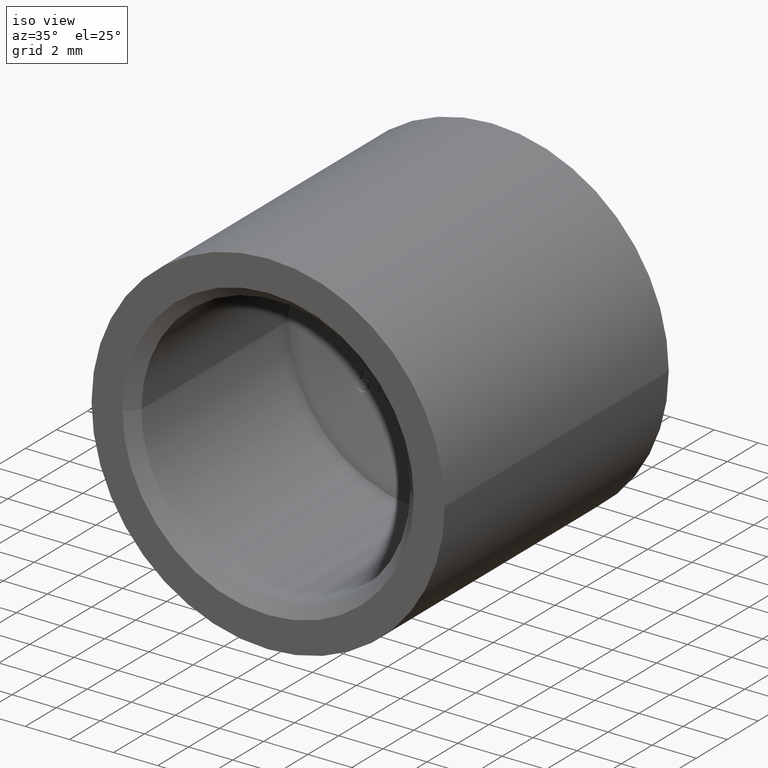
[diagram: clean part render]
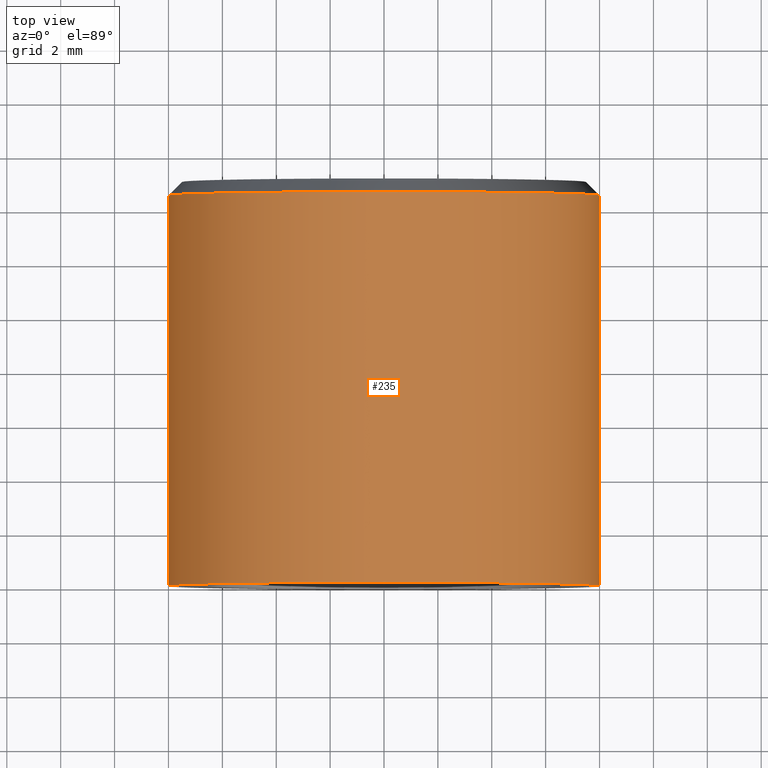
[diagram: tour spotlight — one face highlighted and labeled with its STEP entity id]
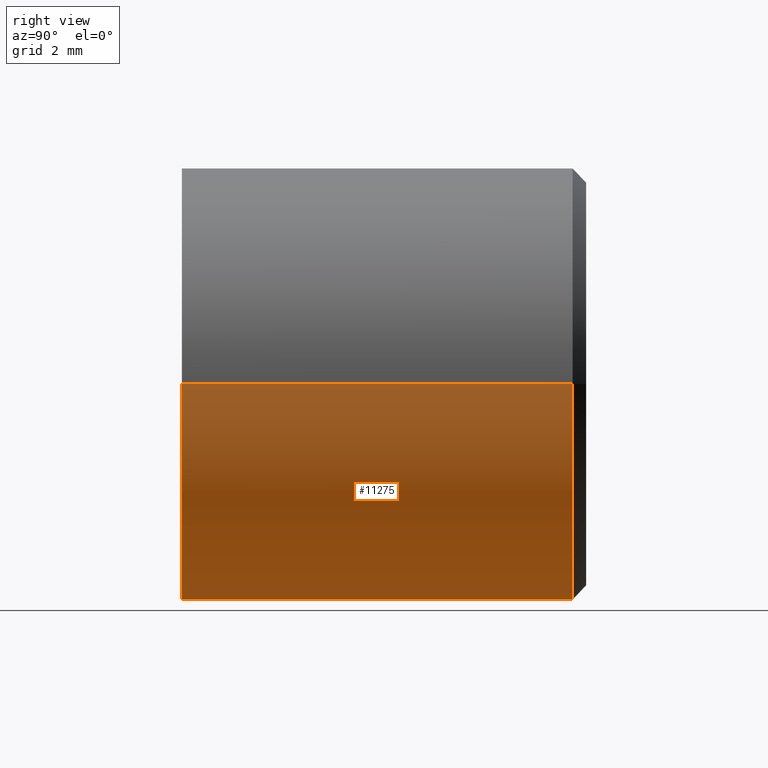
[diagram: tour spotlight — one face highlighted and labeled with its STEP entity id]
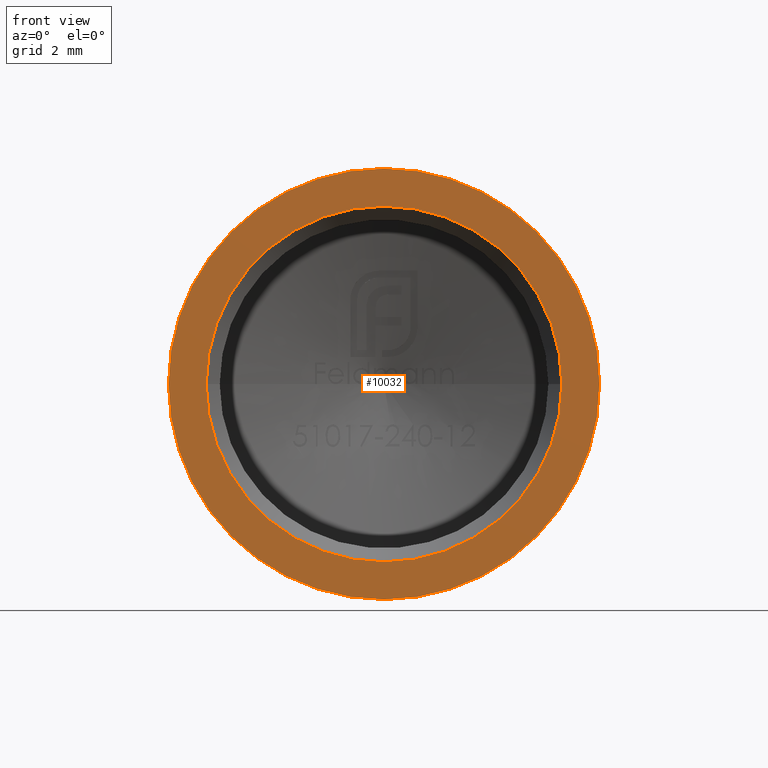
[diagram: tour spotlight — one face highlighted and labeled with its STEP entity id]
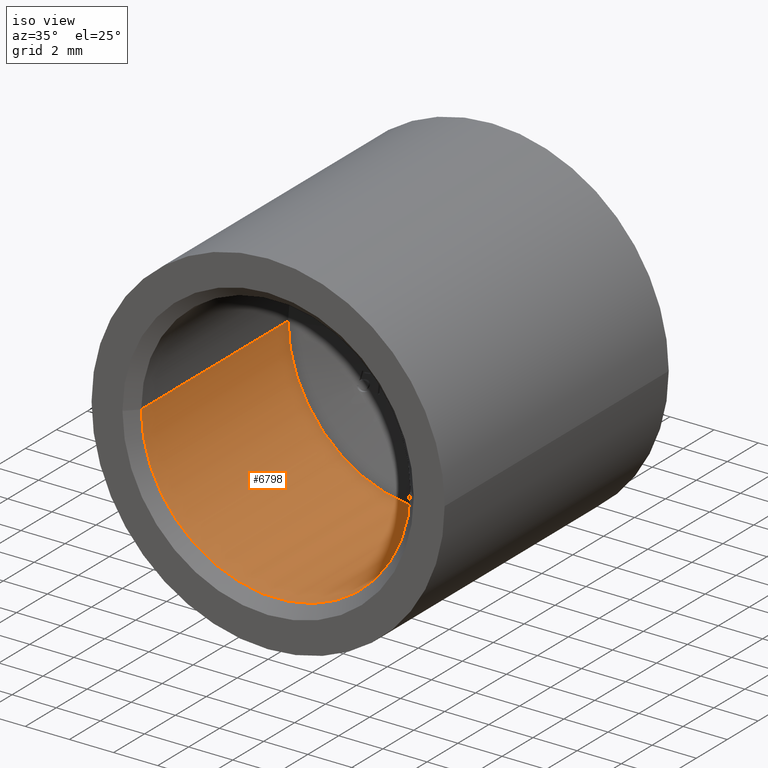
[diagram: tour spotlight — one face highlighted and labeled with its STEP entity id]
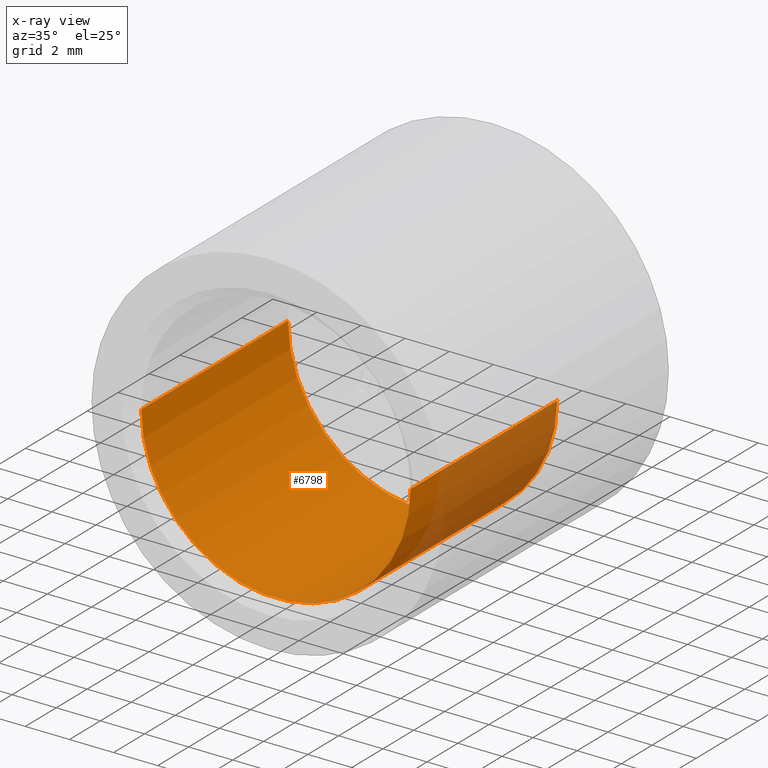
[diagram: x-ray of the same camera — body ghosted, this tour face saturated]
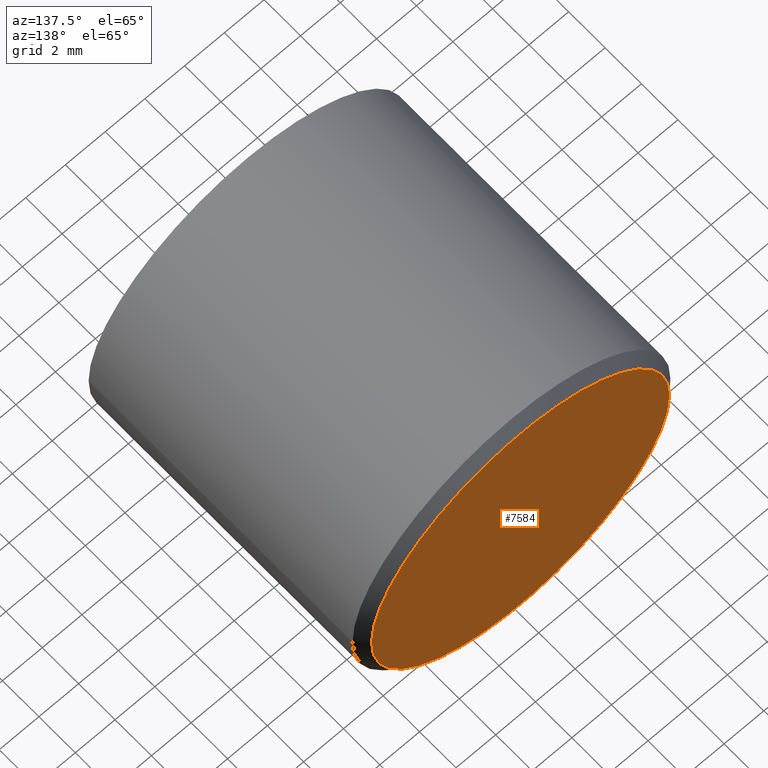
[diagram: tour spotlight — one face highlighted and labeled with its STEP entity id]
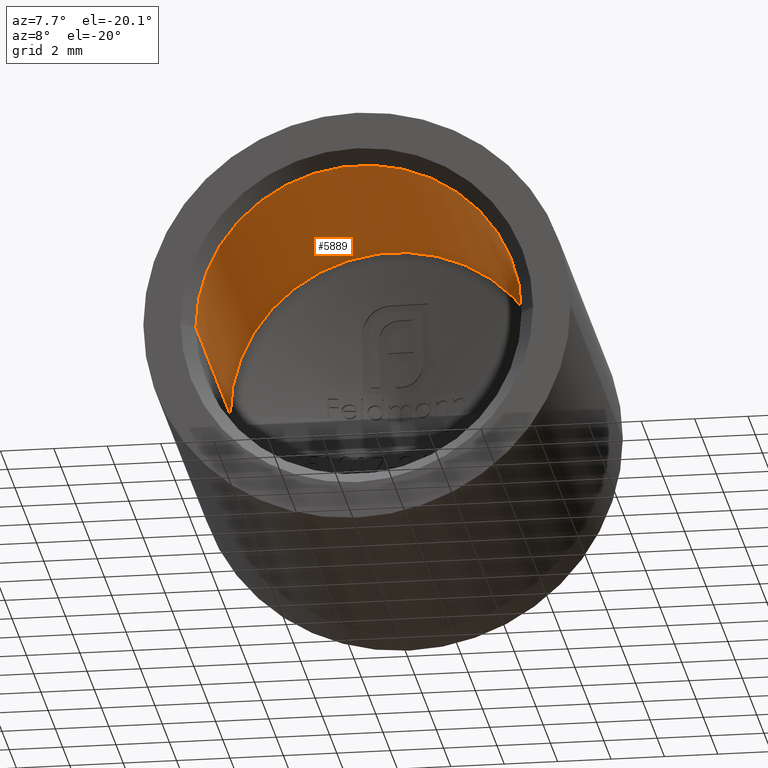
[diagram: tour spotlight — one face highlighted and labeled with its STEP entity id]
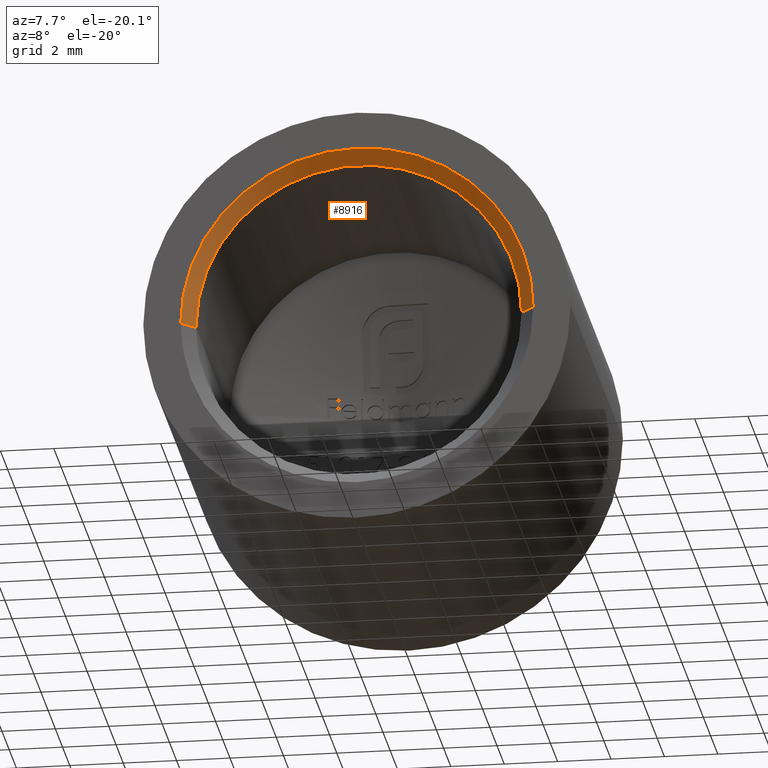
[diagram: tour spotlight — one face highlighted and labeled with its STEP entity id]
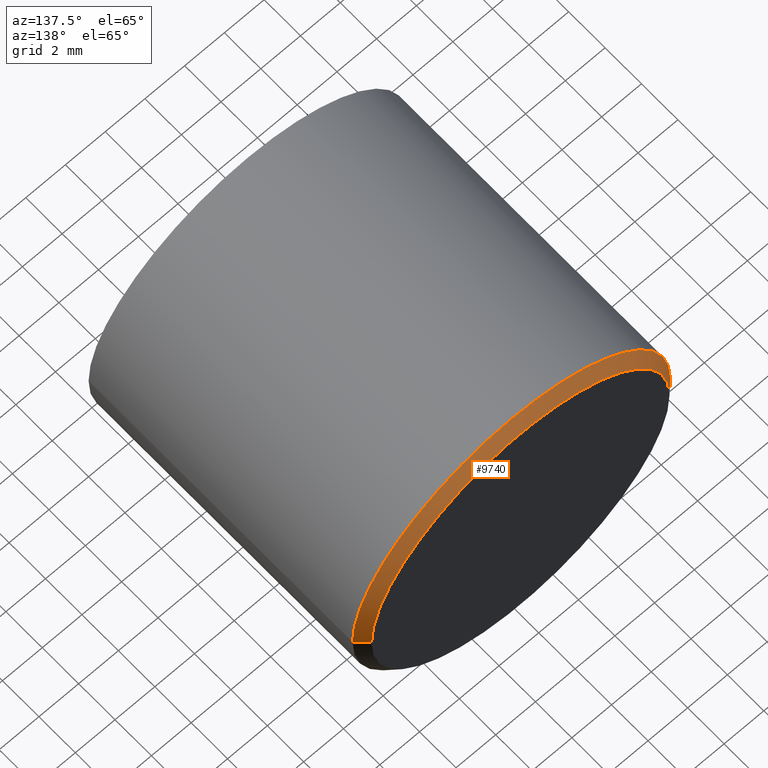
[diagram: tour spotlight — one face highlighted and labeled with its STEP entity id]
A machine part: a face-by-face anatomy tour. The part has 289 B-rep faces; the first image is the clean iso view, then the 8 largest visible faces are spotlighted one at a time (largest first), each with its STEP entity span.

Face 1 — top view, entity #235. In plain terms, the highlighted cylindrical surface (partial cylindrical patch) has radius 8 mm, axis along (-0, 1, -0).
Definition (entity closure, byte-faithful):
#9 = EDGE_CURVE ( 'NONE', #12819, #5867, #4205, .T. ) ;
#12 = CARTESIAN_POINT ( 'NONE',  ( 8.000000000000000000, 14.49999999999999467, 9.797174393178825657E-16 ) ) ;
#235 = ADVANCED_FACE ( 'NONE', ( #11377 ), #10595, .T. ) ;
#869 = CARTESIAN_POINT ( 'NONE',  ( 8.000000000000000000, 14.99999999999999822, 9.797174393178825657E-16 ) ) ;
#962 = VERTEX_POINT ( 'NONE', #4371 ) ;
#1345 = EDGE_CURVE ( 'NONE', #962, #7133, #8089, .T. ) ;
#2359 = ORIENTED_EDGE ( 'NONE', *, *, #9, .T. ) ;
#2630 = DIRECTION ( 'NONE',  ( -6.618464551199105246E-18, 1.000000000000000000, -0.000000000000000000 ) ) ;
#3246 = DIRECTION ( 'NONE',  ( 1.000000000000000000, 0.000000000000000000, 0.000000000000000000 ) ) ;
#3904 = DIRECTION ( 'NONE',  ( -6.618464551199105246E-18, 1.000000000000000000, -0.000000000000000000 ) ) ;
#3992 = AXIS2_PLACEMENT_3D ( 'NONE', #8762, #2630, #6684 ) ;
#4205 = LINE ( 'NONE', #869, #13158 ) ;
#4371 = CARTESIAN_POINT ( 'NONE',  ( -8.000000000000000000, -5.294771640959284813E-17, 0.000000000000000000 ) ) ;
#4662 = AXIS2_PLACEMENT_3D ( 'NONE', #8352, #10383, #3246 ) ;
#4717 = EDGE_CURVE ( 'NONE', #5867, #7133, #9868, .T. ) ;
#5100 = ORIENTED_EDGE ( 'NONE', *, *, #1345, .F. ) ;
#5333 = EDGE_LOOP ( 'NONE', ( #6209, #2359, #8066, #5100 ) ) ;
#5867 = VERTEX_POINT ( 'NONE', #12 ) ;
#6209 = ORIENTED_EDGE ( 'NONE', *, *, #10304, .T. ) ;
#6594 = DIRECTION ( 'NONE',  ( -1.000000000000000000, -6.618464551199106016E-18, 0.000000000000000000 ) ) ;
#6684 = DIRECTION ( 'NONE',  ( -1.000000000000000000, 0.000000000000000000, 0.000000000000000000 ) ) ;
#6688 = CARTESIAN_POINT ( 'NONE',  ( 9.927696826798656020E-17, 0.000000000000000000, 0.000000000000000000 ) ) ;
#7133 = VERTEX_POINT ( 'NONE', #8022 ) ;
#7606 = AXIS2_PLACEMENT_3D ( 'NONE', #6688, #12863, #6594 ) ;
#8022 = CARTESIAN_POINT ( 'NONE',  ( -8.000000000000000000, 14.49999999999999467, 0.000000000000000000 ) ) ;
#8066 = ORIENTED_EDGE ( 'NONE', *, *, #4717, .T. ) ;
#8089 = LINE ( 'NONE', #11222, #11477 ) ;
#8352 = CARTESIAN_POINT ( 'NONE',  ( 3.309232275599567260E-18, 14.49999999999999467, 0.000000000000000000 ) ) ;
#8762 = CARTESIAN_POINT ( 'NONE',  ( 0.000000000000000000, 14.99999999999999822, 0.000000000000000000 ) ) ;
#9151 = DIRECTION ( 'NONE',  ( -6.618464551199105246E-18, 1.000000000000000000, -0.000000000000000000 ) ) ;
#9868 = CIRCLE ( 'NONE', #4662, 8.000000000000000000 ) ;
#10304 = EDGE_CURVE ( 'NONE', #962, #12819, #12483, .T. ) ;
#10383 = DIRECTION ( 'NONE',  ( 6.618464551199105246E-18, -1.000000000000000000, 0.000000000000000000 ) ) ;
#10595 = CYLINDRICAL_SURFACE ( 'NONE', #3992, 8.000000000000000000 ) ;
#10606 = CARTESIAN_POINT ( 'NONE',  ( 8.000000000000000000, 5.294771640959284813E-17, 9.797174393178825657E-16 ) ) ;
#11222 = CARTESIAN_POINT ( 'NONE',  ( -8.000000000000000000, 14.99999999999999822, 0.000000000000000000 ) ) ;
#11377 = FACE_OUTER_BOUND ( 'NONE', #5333, .T. ) ;
#11477 = VECTOR ( 'NONE', #9151, 1000.000000000000000 ) ;
#12483 = CIRCLE ( 'NONE', #7606, 8.000000000000000000 ) ;
#12819 = VERTEX_POINT ( 'NONE', #10606 ) ;
#12863 = DIRECTION ( 'NONE',  ( -6.618464551199105246E-18, 1.000000000000000000, -0.000000000000000000 ) ) ;
#13158 = VECTOR ( 'NONE', #3904, 1000.000000000000000 ) ;

Face 2 — right view, entity #11275. In plain terms, the highlighted cylindrical surface (partial cylindrical patch) has radius 8 mm, axis along (-0, 1, -0).
Definition (entity closure, byte-faithful):
#9 = EDGE_CURVE ( 'NONE', #12819, #5867, #4205, .T. ) ;
#12 = CARTESIAN_POINT ( 'NONE',  ( 8.000000000000000000, 14.49999999999999467, 9.797174393178825657E-16 ) ) ;
#54 = CARTESIAN_POINT ( 'NONE',  ( 9.927696826798656020E-17, 0.000000000000000000, 0.000000000000000000 ) ) ;
#515 = DIRECTION ( 'NONE',  ( -1.000000000000000000, 0.000000000000000000, 0.000000000000000000 ) ) ;
#869 = CARTESIAN_POINT ( 'NONE',  ( 8.000000000000000000, 14.99999999999999822, 9.797174393178825657E-16 ) ) ;
#962 = VERTEX_POINT ( 'NONE', #4371 ) ;
#1345 = EDGE_CURVE ( 'NONE', #962, #7133, #8089, .T. ) ;
#1393 = EDGE_CURVE ( 'NONE', #7133, #5867, #10437, .T. ) ;
#1661 = ORIENTED_EDGE ( 'NONE', *, *, #1345, .T. ) ;
#2082 = EDGE_LOOP ( 'NONE', ( #2357, #13066, #1661, #13167 ) ) ;
#2357 = ORIENTED_EDGE ( 'NONE', *, *, #9, .F. ) ;
#2628 = AXIS2_PLACEMENT_3D ( 'NONE', #10427, #11409, #7345 ) ;
#3876 = EDGE_CURVE ( 'NONE', #12819, #962, #8584, .T. ) ;
#3904 = DIRECTION ( 'NONE',  ( -6.618464551199105246E-18, 1.000000000000000000, -0.000000000000000000 ) ) ;
#4205 = LINE ( 'NONE', #869, #13158 ) ;
#4371 = CARTESIAN_POINT ( 'NONE',  ( -8.000000000000000000, -5.294771640959284813E-17, 0.000000000000000000 ) ) ;
#5097 = CYLINDRICAL_SURFACE ( 'NONE', #13023, 8.000000000000000000 ) ;
#5867 = VERTEX_POINT ( 'NONE', #12 ) ;
#7133 = VERTEX_POINT ( 'NONE', #8022 ) ;
#7345 = DIRECTION ( 'NONE',  ( 1.000000000000000000, 0.000000000000000000, 0.000000000000000000 ) ) ;
#7825 = FACE_OUTER_BOUND ( 'NONE', #2082, .T. ) ;
#8022 = CARTESIAN_POINT ( 'NONE',  ( -8.000000000000000000, 14.49999999999999467, 0.000000000000000000 ) ) ;
#8089 = LINE ( 'NONE', #11222, #11477 ) ;
#8161 = DIRECTION ( 'NONE',  ( -1.000000000000000000, -6.618464551199106016E-18, 0.000000000000000000 ) ) ;
#8203 = DIRECTION ( 'NONE',  ( -6.618464551199105246E-18, 1.000000000000000000, -0.000000000000000000 ) ) ;
#8584 = CIRCLE ( 'NONE', #11500, 8.000000000000000000 ) ;
#9151 = DIRECTION ( 'NONE',  ( -6.618464551199105246E-18, 1.000000000000000000, -0.000000000000000000 ) ) ;
#10427 = CARTESIAN_POINT ( 'NONE',  ( 3.309232275599567260E-18, 14.49999999999999467, 0.000000000000000000 ) ) ;
#10437 = CIRCLE ( 'NONE', #2628, 8.000000000000000000 ) ;
#10510 = CARTESIAN_POINT ( 'NONE',  ( 0.000000000000000000, 14.99999999999999822, 0.000000000000000000 ) ) ;
#10606 = CARTESIAN_POINT ( 'NONE',  ( 8.000000000000000000, 5.294771640959284813E-17, 9.797174393178825657E-16 ) ) ;
#11222 = CARTESIAN_POINT ( 'NONE',  ( -8.000000000000000000, 14.99999999999999822, 0.000000000000000000 ) ) ;
#11275 = ADVANCED_FACE ( 'NONE', ( #7825 ), #5097, .T. ) ;
#11409 = DIRECTION ( 'NONE',  ( 6.618464551199105246E-18, -1.000000000000000000, 0.000000000000000000 ) ) ;
#11477 = VECTOR ( 'NONE', #9151, 1000.000000000000000 ) ;
#11500 = AXIS2_PLACEMENT_3D ( 'NONE', #54, #8203, #8161 ) ;
#12580 = DIRECTION ( 'NONE',  ( -6.618464551199105246E-18, 1.000000000000000000, -0.000000000000000000 ) ) ;
#12819 = VERTEX_POINT ( 'NONE', #10606 ) ;
#13023 = AXIS2_PLACEMENT_3D ( 'NONE', #10510, #12580, #515 ) ;
#13066 = ORIENTED_EDGE ( 'NONE', *, *, #3876, .T. ) ;
#13158 = VECTOR ( 'NONE', #3904, 1000.000000000000000 ) ;
#13167 = ORIENTED_EDGE ( 'NONE', *, *, #1393, .T. ) ;

Face 3 — front view, entity #10032. In plain terms, the highlighted planar face has unit normal (-0, 1, 0).
Definition (entity closure, byte-faithful):
#54 = CARTESIAN_POINT ( 'NONE',  ( 9.927696826798656020E-17, 0.000000000000000000, 0.000000000000000000 ) ) ;
#183 = ORIENTED_EDGE ( 'NONE', *, *, #3876, .F. ) ;
#510 = EDGE_LOOP ( 'NONE', ( #8728, #8024 ) ) ;
#592 = EDGE_CURVE ( 'NONE', #10775, #5686, #10922, .T. ) ;
#821 = FACE_BOUND ( 'NONE', #510, .T. ) ;
#962 = VERTEX_POINT ( 'NONE', #4371 ) ;
#963 = AXIS2_PLACEMENT_3D ( 'NONE', #12303, #8339, #12392 ) ;
#2325 = DIRECTION ( 'NONE',  ( -6.618464551199105246E-18, 1.000000000000000000, -0.000000000000000000 ) ) ;
#2375 = DIRECTION ( 'NONE',  ( -1.000000000000000000, -6.618464551199106016E-18, 0.000000000000000000 ) ) ;
#2633 = EDGE_LOOP ( 'NONE', ( #8710, #183 ) ) ;
#3176 = CARTESIAN_POINT ( 'NONE',  ( -6.600000000000002309, -9.034204112386780417E-17, 8.082668874372533978E-16 ) ) ;
#3839 = EDGE_CURVE ( 'NONE', #5686, #10775, #9707, .T. ) ;
#3876 = EDGE_CURVE ( 'NONE', #12819, #962, #8584, .T. ) ;
#4371 = CARTESIAN_POINT ( 'NONE',  ( -8.000000000000000000, -5.294771640959284813E-17, 0.000000000000000000 ) ) ;
#4424 = CARTESIAN_POINT ( 'NONE',  ( 6.600000000000002309, -2.978309048039577254E-18, 0.000000000000000000 ) ) ;
#5686 = VERTEX_POINT ( 'NONE', #4424 ) ;
#5901 = CARTESIAN_POINT ( 'NONE',  ( 6.099999999999999645, -6.287541323639151832E-18, 0.000000000000000000 ) ) ;
#6594 = DIRECTION ( 'NONE',  ( -1.000000000000000000, -6.618464551199106016E-18, 0.000000000000000000 ) ) ;
#6688 = CARTESIAN_POINT ( 'NONE',  ( 9.927696826798656020E-17, 0.000000000000000000, 0.000000000000000000 ) ) ;
#6761 = AXIS2_PLACEMENT_3D ( 'NONE', #5901, #7936, #10815 ) ;
#7606 = AXIS2_PLACEMENT_3D ( 'NONE', #6688, #12863, #6594 ) ;
#7936 = DIRECTION ( 'NONE',  ( -6.618464551199105246E-18, 1.000000000000000000, 0.000000000000000000 ) ) ;
#8024 = ORIENTED_EDGE ( 'NONE', *, *, #592, .T. ) ;
#8161 = DIRECTION ( 'NONE',  ( -1.000000000000000000, -6.618464551199106016E-18, 0.000000000000000000 ) ) ;
#8203 = DIRECTION ( 'NONE',  ( -6.618464551199105246E-18, 1.000000000000000000, -0.000000000000000000 ) ) ;
#8339 = DIRECTION ( 'NONE',  ( -6.618464551199105246E-18, 1.000000000000000000, -0.000000000000000000 ) ) ;
#8419 = CARTESIAN_POINT ( 'NONE',  ( 9.927696826798656020E-17, -4.666017508595368859E-17, 0.000000000000000000 ) ) ;
#8584 = CIRCLE ( 'NONE', #11500, 8.000000000000000000 ) ;
#8710 = ORIENTED_EDGE ( 'NONE', *, *, #10304, .F. ) ;
#8728 = ORIENTED_EDGE ( 'NONE', *, *, #3839, .T. ) ;
#9236 = FACE_OUTER_BOUND ( 'NONE', #2633, .T. ) ;
#9707 = CIRCLE ( 'NONE', #963, 6.600000000000002309 ) ;
#10032 = ADVANCED_FACE ( 'NONE', ( #821, #9236 ), #10995, .F. ) ;
#10304 = EDGE_CURVE ( 'NONE', #962, #12819, #12483, .T. ) ;
#10606 = CARTESIAN_POINT ( 'NONE',  ( 8.000000000000000000, 5.294771640959284813E-17, 9.797174393178825657E-16 ) ) ;
#10775 = VERTEX_POINT ( 'NONE', #3176 ) ;
#10815 = DIRECTION ( 'NONE',  ( -1.000000000000000000, -6.618464551199105246E-18, 0.000000000000000000 ) ) ;
#10922 = CIRCLE ( 'NONE', #11334, 6.600000000000002309 ) ;
#10995 = PLANE ( 'NONE',  #6761 ) ;
#11334 = AXIS2_PLACEMENT_3D ( 'NONE', #8419, #2325, #2375 ) ;
#11500 = AXIS2_PLACEMENT_3D ( 'NONE', #54, #8203, #8161 ) ;
#12303 = CARTESIAN_POINT ( 'NONE',  ( 9.927696826798656020E-17, -4.666017508595368859E-17, 0.000000000000000000 ) ) ;
#12392 = DIRECTION ( 'NONE',  ( -1.000000000000000000, -6.618464551199106016E-18, 0.000000000000000000 ) ) ;
#12483 = CIRCLE ( 'NONE', #7606, 8.000000000000000000 ) ;
#12819 = VERTEX_POINT ( 'NONE', #10606 ) ;
#12863 = DIRECTION ( 'NONE',  ( -6.618464551199105246E-18, 1.000000000000000000, -0.000000000000000000 ) ) ;

Face 4 — iso view, entity #6798. An x-ray twin of the same camera follows (body ghosted, this face saturated) — the face is partly hidden behind the body. In plain terms, the highlighted cylindrical surface (partial cylindrical patch) has radius 6.1 mm, axis along (-0, 1, -0).
Definition (entity closure, byte-faithful):
#582 = CARTESIAN_POINT ( 'NONE',  ( 0.000000000000000000, 14.99999999999999822, 0.000000000000000000 ) ) ;
#1104 = ORIENTED_EDGE ( 'NONE', *, *, #12552, .T. ) ;
#3277 = AXIS2_PLACEMENT_3D ( 'NONE', #9651, #6719, #11862 ) ;
#3460 = EDGE_LOOP ( 'NONE', ( #12862, #8117, #1104, #7053 ) ) ;
#3717 = DIRECTION ( 'NONE',  ( -1.000000000000000000, 0.000000000000000000, 0.000000000000000000 ) ) ;
#3887 = AXIS2_PLACEMENT_3D ( 'NONE', #582, #8772, #3717 ) ;
#4057 = EDGE_CURVE ( 'NONE', #7925, #7695, #9204, .T. ) ;
#5043 = AXIS2_PLACEMENT_3D ( 'NONE', #12177, #6046, #12212 ) ;
#5259 = DIRECTION ( 'NONE',  ( -6.618464551199105246E-18, 1.000000000000000000, -0.000000000000000000 ) ) ;
#5300 = CARTESIAN_POINT ( 'NONE',  ( 6.099999999999998757, 0.5000000000000022204, 7.470345474798853307E-16 ) ) ;
#5534 = EDGE_CURVE ( 'NONE', #7925, #12870, #8397, .T. ) ;
#6046 = DIRECTION ( 'NONE',  ( -6.618464551199105246E-18, 1.000000000000000000, -0.000000000000000000 ) ) ;
#6719 = DIRECTION ( 'NONE',  ( 6.618464551199104475E-18, -1.000000000000000000, -0.000000000000000000 ) ) ;
#6798 = ADVANCED_FACE ( 'NONE', ( #11113 ), #11601, .F. ) ;
#7053 = ORIENTED_EDGE ( 'NONE', *, *, #5534, .F. ) ;
#7665 = CARTESIAN_POINT ( 'NONE',  ( 6.099999999999998757, 14.99999999999999822, 7.470345474798853307E-16 ) ) ;
#7695 = VERTEX_POINT ( 'NONE', #5300 ) ;
#7745 = VECTOR ( 'NONE', #10797, 1000.000000000000000 ) ;
#7820 = EDGE_CURVE ( 'NONE', #7695, #12060, #8191, .T. ) ;
#7925 = VERTEX_POINT ( 'NONE', #11878 ) ;
#8117 = ORIENTED_EDGE ( 'NONE', *, *, #7820, .T. ) ;
#8191 = LINE ( 'NONE', #7665, #7745 ) ;
#8397 = LINE ( 'NONE', #12279, #9695 ) ;
#8772 = DIRECTION ( 'NONE',  ( -6.618464551199105246E-18, 1.000000000000000000, -0.000000000000000000 ) ) ;
#9092 = CARTESIAN_POINT ( 'NONE',  ( -6.100000000000000533, 10.00000000000000000, 7.470345474798855279E-16 ) ) ;
#9204 = CIRCLE ( 'NONE', #3277, 6.099999999999998757 ) ;
#9651 = CARTESIAN_POINT ( 'NONE',  ( 9.596773599238699217E-17, 0.5000000000000022204, 0.000000000000000000 ) ) ;
#9695 = VECTOR ( 'NONE', #5259, 1000.000000000000000 ) ;
#9824 = CARTESIAN_POINT ( 'NONE',  ( 6.100000000000000533, 10.00000000000000000, 0.000000000000000000 ) ) ;
#10797 = DIRECTION ( 'NONE',  ( -6.618464551199105246E-18, 1.000000000000000000, -0.000000000000000000 ) ) ;
#11113 = FACE_OUTER_BOUND ( 'NONE', #3460, .T. ) ;
#11601 = CYLINDRICAL_SURFACE ( 'NONE', #3887, 6.099999999999998757 ) ;
#11862 = DIRECTION ( 'NONE',  ( -1.000000000000000000, 0.000000000000000000, 0.000000000000000000 ) ) ;
#11878 = CARTESIAN_POINT ( 'NONE',  ( -6.099999999999998757, 0.5000000000000022204, 0.000000000000000000 ) ) ;
#12060 = VERTEX_POINT ( 'NONE', #9824 ) ;
#12177 = CARTESIAN_POINT ( 'NONE',  ( 3.309232275599550774E-17, 10.00000000000000000, 0.000000000000000000 ) ) ;
#12212 = DIRECTION ( 'NONE',  ( -1.000000000000000000, 0.000000000000000000, 0.000000000000000000 ) ) ;
#12279 = CARTESIAN_POINT ( 'NONE',  ( -6.099999999999998757, 14.99999999999999822, 0.000000000000000000 ) ) ;
#12552 = EDGE_CURVE ( 'NONE', #12060, #12870, #13237, .T. ) ;
#12862 = ORIENTED_EDGE ( 'NONE', *, *, #4057, .T. ) ;
#12870 = VERTEX_POINT ( 'NONE', #9092 ) ;
#13237 = CIRCLE ( 'NONE', #5043, 6.099999999999997868 ) ;

Face 5 — auxiliary view, entity #7584. In plain terms, the highlighted planar face has unit normal (0, -1, 0).
Definition (entity closure, byte-faithful):
#202 = DIRECTION ( 'NONE',  ( 1.000000000000000000, 0.000000000000000000, 0.000000000000000000 ) ) ;
#825 = AXIS2_PLACEMENT_3D ( 'NONE', #9082, #6185, #10282 ) ;
#1284 = ORIENTED_EDGE ( 'NONE', *, *, #9729, .T. ) ;
#1289 = DIRECTION ( 'NONE',  ( 1.000000000000000000, 0.000000000000000000, 0.000000000000000000 ) ) ;
#1966 = AXIS2_PLACEMENT_3D ( 'NONE', #10322, #7287, #202 ) ;
#6000 = ORIENTED_EDGE ( 'NONE', *, *, #10579, .T. ) ;
#6092 = PLANE ( 'NONE',  #825 ) ;
#6185 = DIRECTION ( 'NONE',  ( 6.618464551199105246E-18, -1.000000000000000000, 0.000000000000000000 ) ) ;
#6467 = FACE_OUTER_BOUND ( 'NONE', #10829, .T. ) ;
#6547 = CARTESIAN_POINT ( 'NONE',  ( -1.145930379537765029E-32, 15.00000000000000000, 0.000000000000000000 ) ) ;
#7287 = DIRECTION ( 'NONE',  ( -6.618464551199105246E-18, 1.000000000000000000, -0.000000000000000000 ) ) ;
#7390 = DIRECTION ( 'NONE',  ( -6.618464551199105246E-18, 1.000000000000000000, -0.000000000000000000 ) ) ;
#7500 = CIRCLE ( 'NONE', #1966, 7.499999999999996447 ) ;
#7584 = ADVANCED_FACE ( 'NONE', ( #6467 ), #6092, .F. ) ;
#8622 = CIRCLE ( 'NONE', #10875, 7.499999999999996447 ) ;
#9082 = CARTESIAN_POINT ( 'NONE',  ( 8.000000000000000000, 15.00000000000000000, 0.000000000000000000 ) ) ;
#9186 = CARTESIAN_POINT ( 'NONE',  ( 7.499999999999996447, 15.00000000000000000, 0.000000000000000000 ) ) ;
#9729 = EDGE_CURVE ( 'NONE', #10028, #10450, #8622, .T. ) ;
#10028 = VERTEX_POINT ( 'NONE', #10864 ) ;
#10282 = DIRECTION ( 'NONE',  ( 1.000000000000000000, 6.618464551199105246E-18, 0.000000000000000000 ) ) ;
#10322 = CARTESIAN_POINT ( 'NONE',  ( -1.145930379537765029E-32, 15.00000000000000000, 0.000000000000000000 ) ) ;
#10450 = VERTEX_POINT ( 'NONE', #9186 ) ;
#10579 = EDGE_CURVE ( 'NONE', #10450, #10028, #7500, .T. ) ;
#10829 = EDGE_LOOP ( 'NONE', ( #6000, #1284 ) ) ;
#10864 = CARTESIAN_POINT ( 'NONE',  ( -7.499999999999996447, 15.00000000000000000, 9.491012693391985815E-16 ) ) ;
#10875 = AXIS2_PLACEMENT_3D ( 'NONE', #6547, #7390, #1289 ) ;

Face 6 — auxiliary view, entity #5889. In plain terms, the highlighted cylindrical surface (partial cylindrical patch) has radius 6.1 mm, axis along (-0, 1, -0).
Definition (entity closure, byte-faithful):
#842 = DIRECTION ( 'NONE',  ( -6.618464551199105246E-18, 1.000000000000000000, -0.000000000000000000 ) ) ;
#1133 = AXIS2_PLACEMENT_3D ( 'NONE', #11058, #7035, #5055 ) ;
#1678 = EDGE_LOOP ( 'NONE', ( #9108, #1846, #5839, #8933 ) ) ;
#1681 = DIRECTION ( 'NONE',  ( 6.618464551199104475E-18, -1.000000000000000000, -0.000000000000000000 ) ) ;
#1846 = ORIENTED_EDGE ( 'NONE', *, *, #6102, .T. ) ;
#2072 = AXIS2_PLACEMENT_3D ( 'NONE', #9787, #1681, #9833 ) ;
#4256 = CYLINDRICAL_SURFACE ( 'NONE', #1133, 6.099999999999998757 ) ;
#5055 = DIRECTION ( 'NONE',  ( -1.000000000000000000, 0.000000000000000000, 0.000000000000000000 ) ) ;
#5259 = DIRECTION ( 'NONE',  ( -6.618464551199105246E-18, 1.000000000000000000, -0.000000000000000000 ) ) ;
#5300 = CARTESIAN_POINT ( 'NONE',  ( 6.099999999999998757, 0.5000000000000022204, 7.470345474798853307E-16 ) ) ;
#5534 = EDGE_CURVE ( 'NONE', #7925, #12870, #8397, .T. ) ;
#5839 = ORIENTED_EDGE ( 'NONE', *, *, #5534, .T. ) ;
#5889 = ADVANCED_FACE ( 'NONE', ( #13214 ), #4256, .F. ) ;
#6102 = EDGE_CURVE ( 'NONE', #7695, #7925, #11773, .T. ) ;
#7035 = DIRECTION ( 'NONE',  ( -6.618464551199105246E-18, 1.000000000000000000, -0.000000000000000000 ) ) ;
#7665 = CARTESIAN_POINT ( 'NONE',  ( 6.099999999999998757, 14.99999999999999822, 7.470345474798853307E-16 ) ) ;
#7695 = VERTEX_POINT ( 'NONE', #5300 ) ;
#7745 = VECTOR ( 'NONE', #10797, 1000.000000000000000 ) ;
#7820 = EDGE_CURVE ( 'NONE', #7695, #12060, #8191, .T. ) ;
#7925 = VERTEX_POINT ( 'NONE', #11878 ) ;
#8191 = LINE ( 'NONE', #7665, #7745 ) ;
#8397 = LINE ( 'NONE', #12279, #9695 ) ;
#8459 = AXIS2_PLACEMENT_3D ( 'NONE', #13031, #842, #9979 ) ;
#8933 = ORIENTED_EDGE ( 'NONE', *, *, #12489, .T. ) ;
#9092 = CARTESIAN_POINT ( 'NONE',  ( -6.100000000000000533, 10.00000000000000000, 7.470345474798855279E-16 ) ) ;
#9108 = ORIENTED_EDGE ( 'NONE', *, *, #7820, .F. ) ;
#9695 = VECTOR ( 'NONE', #5259, 1000.000000000000000 ) ;
#9787 = CARTESIAN_POINT ( 'NONE',  ( 9.596773599238699217E-17, 0.5000000000000022204, 0.000000000000000000 ) ) ;
#9824 = CARTESIAN_POINT ( 'NONE',  ( 6.100000000000000533, 10.00000000000000000, 0.000000000000000000 ) ) ;
#9833 = DIRECTION ( 'NONE',  ( -1.000000000000000000, 0.000000000000000000, 0.000000000000000000 ) ) ;
#9979 = DIRECTION ( 'NONE',  ( -1.000000000000000000, 0.000000000000000000, 0.000000000000000000 ) ) ;
#10522 = CIRCLE ( 'NONE', #8459, 6.099999999999997868 ) ;
#10797 = DIRECTION ( 'NONE',  ( -6.618464551199105246E-18, 1.000000000000000000, -0.000000000000000000 ) ) ;
#11058 = CARTESIAN_POINT ( 'NONE',  ( 0.000000000000000000, 14.99999999999999822, 0.000000000000000000 ) ) ;
#11773 = CIRCLE ( 'NONE', #2072, 6.099999999999998757 ) ;
#11878 = CARTESIAN_POINT ( 'NONE',  ( -6.099999999999998757, 0.5000000000000022204, 0.000000000000000000 ) ) ;
#12060 = VERTEX_POINT ( 'NONE', #9824 ) ;
#12279 = CARTESIAN_POINT ( 'NONE',  ( -6.099999999999998757, 14.99999999999999822, 0.000000000000000000 ) ) ;
#12489 = EDGE_CURVE ( 'NONE', #12870, #12060, #10522, .T. ) ;
#12870 = VERTEX_POINT ( 'NONE', #9092 ) ;
#13031 = CARTESIAN_POINT ( 'NONE',  ( 3.309232275599550774E-17, 10.00000000000000000, 0.000000000000000000 ) ) ;
#13214 = FACE_OUTER_BOUND ( 'NONE', #1678, .T. ) ;

Face 7 — auxiliary view, entity #8916. In plain terms, the highlighted conical surface has half-angle 45 deg.
Definition (entity closure, byte-faithful):
#562 = CARTESIAN_POINT ( 'NONE',  ( -6.600000000000002309, -4.368186603791410941E-17, 8.082668874372533978E-16 ) ) ;
#592 = EDGE_CURVE ( 'NONE', #10775, #5686, #10922, .T. ) ;
#1024 = CARTESIAN_POINT ( 'NONE',  ( 6.600000000000002309, 4.368186603791410941E-17, 0.000000000000000000 ) ) ;
#1187 = CONICAL_SURFACE ( 'NONE', #1241, 6.600000000000002309, 0.7853981633974500554 ) ;
#1241 = AXIS2_PLACEMENT_3D ( 'NONE', #4833, #11984, #5857 ) ;
#1681 = DIRECTION ( 'NONE',  ( 6.618464551199104475E-18, -1.000000000000000000, -0.000000000000000000 ) ) ;
#2072 = AXIS2_PLACEMENT_3D ( 'NONE', #9787, #1681, #9833 ) ;
#2325 = DIRECTION ( 'NONE',  ( -6.618464551199105246E-18, 1.000000000000000000, -0.000000000000000000 ) ) ;
#2375 = DIRECTION ( 'NONE',  ( -1.000000000000000000, -6.618464551199106016E-18, 0.000000000000000000 ) ) ;
#2844 = ORIENTED_EDGE ( 'NONE', *, *, #6102, .F. ) ;
#3176 = CARTESIAN_POINT ( 'NONE',  ( -6.600000000000002309, -9.034204112386780417E-17, 8.082668874372533978E-16 ) ) ;
#3288 = FACE_OUTER_BOUND ( 'NONE', #5198, .T. ) ;
#3412 = ORIENTED_EDGE ( 'NONE', *, *, #7992, .F. ) ;
#3563 = DIRECTION ( 'NONE',  ( -0.7071067811865487940, -0.7071067811865463515, 8.659560562354948882E-17 ) ) ;
#4231 = ORIENTED_EDGE ( 'NONE', *, *, #592, .F. ) ;
#4424 = CARTESIAN_POINT ( 'NONE',  ( 6.600000000000002309, -2.978309048039577254E-18, 0.000000000000000000 ) ) ;
#4833 = CARTESIAN_POINT ( 'NONE',  ( 9.927696826798656020E-17, 0.000000000000000000, 0.000000000000000000 ) ) ;
#5028 = VECTOR ( 'NONE', #3563, 1000.000000000000000 ) ;
#5198 = EDGE_LOOP ( 'NONE', ( #3412, #2844, #9983, #4231 ) ) ;
#5300 = CARTESIAN_POINT ( 'NONE',  ( 6.099999999999998757, 0.5000000000000022204, 7.470345474798853307E-16 ) ) ;
#5686 = VERTEX_POINT ( 'NONE', #4424 ) ;
#5857 = DIRECTION ( 'NONE',  ( 1.000000000000000000, 6.618464551199105246E-18, 0.000000000000000000 ) ) ;
#6102 = EDGE_CURVE ( 'NONE', #7695, #7925, #11773, .T. ) ;
#6863 = LINE ( 'NONE', #1024, #13250 ) ;
#7695 = VERTEX_POINT ( 'NONE', #5300 ) ;
#7925 = VERTEX_POINT ( 'NONE', #11878 ) ;
#7992 = EDGE_CURVE ( 'NONE', #7925, #10775, #10954, .T. ) ;
#8419 = CARTESIAN_POINT ( 'NONE',  ( 9.927696826798656020E-17, -4.666017508595368859E-17, 0.000000000000000000 ) ) ;
#8916 = ADVANCED_FACE ( 'NONE', ( #3288 ), #1187, .F. ) ;
#9787 = CARTESIAN_POINT ( 'NONE',  ( 9.596773599238699217E-17, 0.5000000000000022204, 0.000000000000000000 ) ) ;
#9833 = DIRECTION ( 'NONE',  ( -1.000000000000000000, 0.000000000000000000, 0.000000000000000000 ) ) ;
#9983 = ORIENTED_EDGE ( 'NONE', *, *, #11542, .T. ) ;
#10775 = VERTEX_POINT ( 'NONE', #3176 ) ;
#10922 = CIRCLE ( 'NONE', #11334, 6.600000000000002309 ) ;
#10954 = LINE ( 'NONE', #562, #5028 ) ;
#11334 = AXIS2_PLACEMENT_3D ( 'NONE', #8419, #2325, #2375 ) ;
#11542 = EDGE_CURVE ( 'NONE', #7695, #5686, #6863, .T. ) ;
#11773 = CIRCLE ( 'NONE', #2072, 6.099999999999998757 ) ;
#11878 = CARTESIAN_POINT ( 'NONE',  ( -6.099999999999998757, 0.5000000000000022204, 0.000000000000000000 ) ) ;
#11984 = DIRECTION ( 'NONE',  ( 6.618464551199104475E-18, -1.000000000000000000, -0.000000000000000000 ) ) ;
#12066 = DIRECTION ( 'NONE',  ( 0.7071067811865487940, -0.7071067811865463515, 0.000000000000000000 ) ) ;
#13250 = VECTOR ( 'NONE', #12066, 1000.000000000000000 ) ;

Face 8 — auxiliary view, entity #9740. In plain terms, the highlighted conical surface has half-angle 45 deg.
Definition (entity closure, byte-faithful):
#12 = CARTESIAN_POINT ( 'NONE',  ( 8.000000000000000000, 14.49999999999999467, 9.797174393178825657E-16 ) ) ;
#116 = ORIENTED_EDGE ( 'NONE', *, *, #9729, .F. ) ;
#160 = CONICAL_SURFACE ( 'NONE', #7174, 7.499999999999996447, 0.7853981633974482790 ) ;
#499 = FACE_OUTER_BOUND ( 'NONE', #11521, .T. ) ;
#1065 = ORIENTED_EDGE ( 'NONE', *, *, #10378, .F. ) ;
#1164 = ORIENTED_EDGE ( 'NONE', *, *, #12796, .T. ) ;
#1289 = DIRECTION ( 'NONE',  ( 1.000000000000000000, 0.000000000000000000, 0.000000000000000000 ) ) ;
#2358 = DIRECTION ( 'NONE',  ( 6.618464551199105246E-18, -1.000000000000000000, 0.000000000000000000 ) ) ;
#2875 = LINE ( 'NONE', #8526, #5245 ) ;
#2903 = CARTESIAN_POINT ( 'NONE',  ( 7.499999999999996447, 15.00000000000000000, 0.000000000000000000 ) ) ;
#3246 = DIRECTION ( 'NONE',  ( 1.000000000000000000, 0.000000000000000000, 0.000000000000000000 ) ) ;
#4662 = AXIS2_PLACEMENT_3D ( 'NONE', #8352, #10383, #3246 ) ;
#4717 = EDGE_CURVE ( 'NONE', #5867, #7133, #9868, .T. ) ;
#5194 = ORIENTED_EDGE ( 'NONE', *, *, #4717, .F. ) ;
#5245 = VECTOR ( 'NONE', #9429, 1000.000000000000114 ) ;
#5478 = CARTESIAN_POINT ( 'NONE',  ( -1.113077324776155735E-32, 15.00000000000000000, 0.000000000000000000 ) ) ;
#5867 = VERTEX_POINT ( 'NONE', #12 ) ;
#6547 = CARTESIAN_POINT ( 'NONE',  ( -1.145930379537765029E-32, 15.00000000000000000, 0.000000000000000000 ) ) ;
#6556 = VECTOR ( 'NONE', #6871, 1000.000000000000114 ) ;
#6871 = DIRECTION ( 'NONE',  ( 0.7071067811865474617, -0.7071067811865474617, 0.000000000000000000 ) ) ;
#7133 = VERTEX_POINT ( 'NONE', #8022 ) ;
#7174 = AXIS2_PLACEMENT_3D ( 'NONE', #5478, #2358, #9479 ) ;
#7390 = DIRECTION ( 'NONE',  ( -6.618464551199105246E-18, 1.000000000000000000, -0.000000000000000000 ) ) ;
#8022 = CARTESIAN_POINT ( 'NONE',  ( -8.000000000000000000, 14.49999999999999467, 0.000000000000000000 ) ) ;
#8352 = CARTESIAN_POINT ( 'NONE',  ( 3.309232275599567260E-18, 14.49999999999999467, 0.000000000000000000 ) ) ;
#8526 = CARTESIAN_POINT ( 'NONE',  ( -7.499999999999996447, 15.00000000000000000, 9.184850993605144000E-16 ) ) ;
#8622 = CIRCLE ( 'NONE', #10875, 7.499999999999996447 ) ;
#9186 = CARTESIAN_POINT ( 'NONE',  ( 7.499999999999996447, 15.00000000000000000, 0.000000000000000000 ) ) ;
#9429 = DIRECTION ( 'NONE',  ( -0.7071067811865474617, -0.7071067811865474617, 8.659560562354932858E-17 ) ) ;
#9479 = DIRECTION ( 'NONE',  ( 1.000000000000000000, 0.000000000000000000, 0.000000000000000000 ) ) ;
#9729 = EDGE_CURVE ( 'NONE', #10028, #10450, #8622, .T. ) ;
#9740 = ADVANCED_FACE ( 'NONE', ( #499 ), #160, .T. ) ;
#9868 = CIRCLE ( 'NONE', #4662, 8.000000000000000000 ) ;
#9918 = LINE ( 'NONE', #2903, #6556 ) ;
#10028 = VERTEX_POINT ( 'NONE', #10864 ) ;
#10378 = EDGE_CURVE ( 'NONE', #10450, #5867, #9918, .T. ) ;
#10383 = DIRECTION ( 'NONE',  ( 6.618464551199105246E-18, -1.000000000000000000, 0.000000000000000000 ) ) ;
#10450 = VERTEX_POINT ( 'NONE', #9186 ) ;
#10864 = CARTESIAN_POINT ( 'NONE',  ( -7.499999999999996447, 15.00000000000000000, 9.491012693391985815E-16 ) ) ;
#10875 = AXIS2_PLACEMENT_3D ( 'NONE', #6547, #7390, #1289 ) ;
#11521 = EDGE_LOOP ( 'NONE', ( #116, #1164, #5194, #1065 ) ) ;
#12796 = EDGE_CURVE ( 'NONE', #10028, #7133, #2875, .T. ) ;